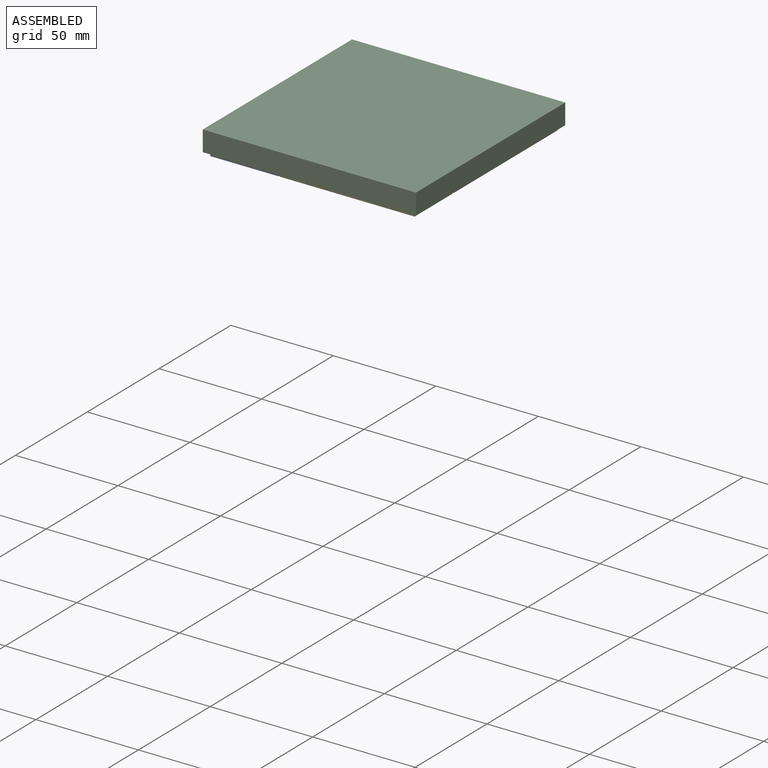
[diagram: assembled view]
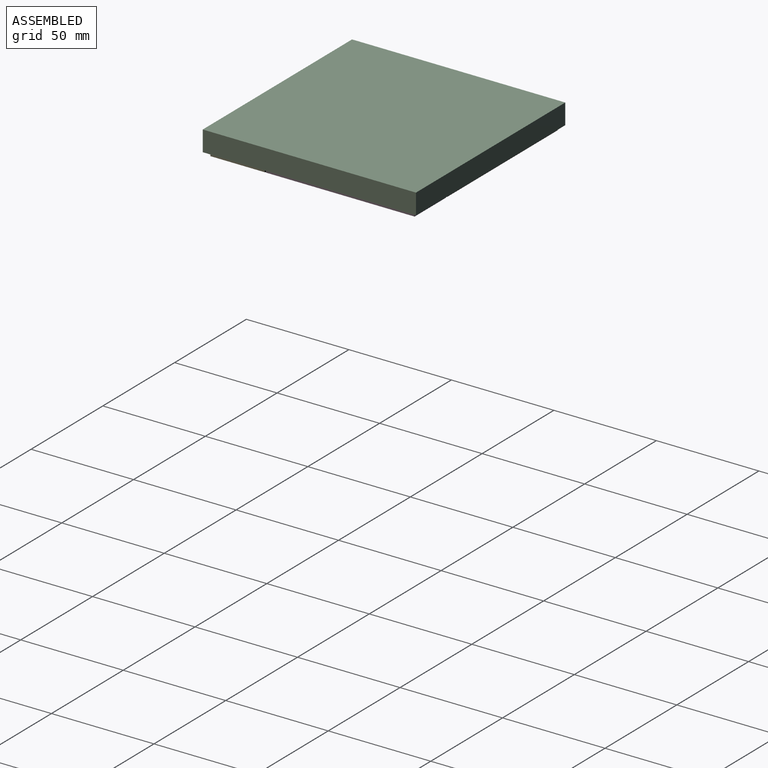
[diagram: assembled view, second angle]
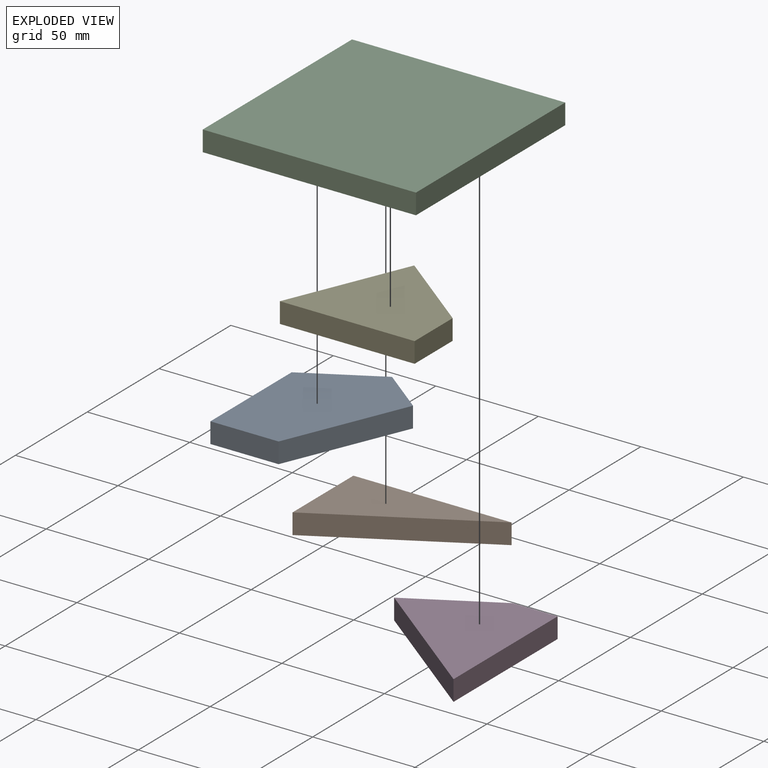
[diagram: exploded view]
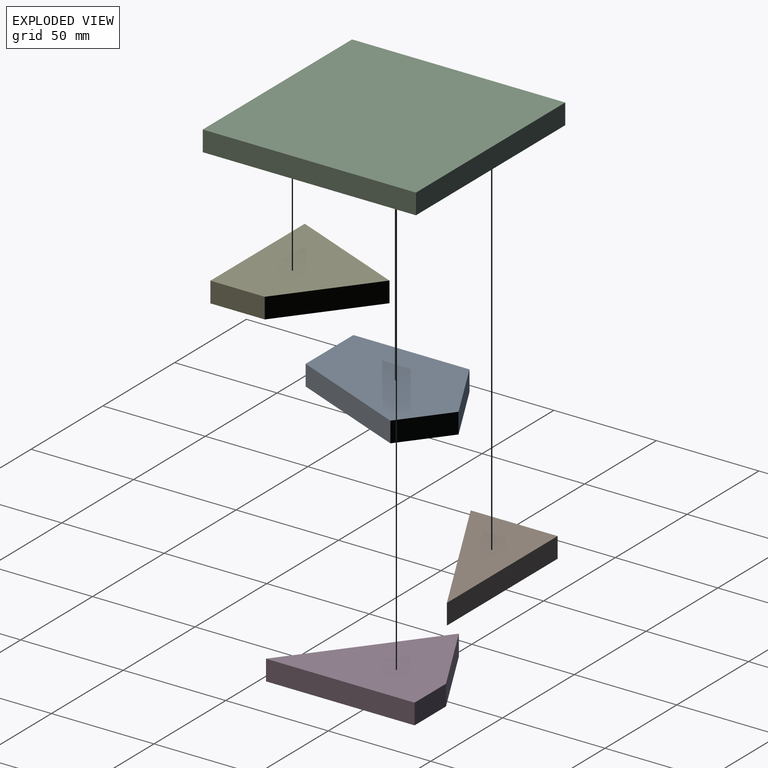
[diagram: exploded view, second angle]
ASSEMBLY  parts=5 mates=4
PART A: 7 faces, bbox 57.9x76x10 mm
  f0: plane 33.27x10mm, normal (0,-1,0), area 332.7mm2, adj f1,f4,f5,f6
  f1: plane 58.53x24.59mm, normal (0.92,-0.39,0), area 634.9mm2, adj f0,f2,f5,f6
  f2: plane 22.5x17.51mm, normal (0.61,0.79,0), area 285.1mm2, adj f1,f3,f5,f6
  f3: plane 35.36x19.42mm, normal (-0.48,0.88,0), area 403.4mm2, adj f2,f4,f5,f6
  f4: plane 56.62x10mm, normal (-1,0,0), area 566.2mm2, adj f0,f3,f5,f6
  f5: plane 76.04x57.86mm, normal (0,0,1), area 3139.4mm2, adj f0,f1,f2,f3,f4
  f6: plane 76.04x57.86mm, normal (0,0,-1), area 3139.4mm2, adj f0,f1,f2,f3,f4
PART B: 5 faces, bbox 77.2x42.4x10 mm
  f0: plane 42.38x10mm, normal (-1,0,0), area 423.8mm2, adj f1,f2,f3,f4
  f1: plane 77.15x42.38mm, normal (0.48,-0.88,0), area 880.3mm2, adj f0,f2,f3,f4
  f2: plane 77.15x10mm, normal (0,1,0), area 771.5mm2, adj f0,f1,f3,f4
  f3: plane 77.15x42.38mm, normal (0,0,1), area 1635mm2, adj f0,f1,f2
  f4: plane 77.15x42.38mm, normal (0,0,-1), area 1635mm2, adj f0,f1,f2
PART C: 11 faces, bbox 104x104x10 mm
  f0: plane 104x10mm, normal (1,0,0), area 1040mm2, adj f1,f3,f4,f5
  f1: plane 104x10mm, normal (0,1,0), area 1040mm2, adj f0,f2,f4,f5
  f2: plane 104x10mm, normal (-1,0,0), area 1040mm2, adj f1,f3,f4,f5
  f3: plane 104x10mm, normal (0,-1,0), area 1040mm2, adj f0,f2,f4,f5
  f4: plane 104x104mm, normal (0,0,1), area 10816mm2, adj f0,f1,f2,f3
  f5: plane 104x104mm, normal (0,0,-1), area 816mm2, adj f0,f1,f2,f3,f6,f7,f8,f9
  f6: plane 100x8mm, normal (-1,0,0), area 800mm2, adj f5,f7,f9,f10
  f7: plane 100x8mm, normal (0,-1,0), area 800mm2, adj f5,f6,f8,f10
  f8: plane 100x8mm, normal (1,0,0), area 800mm2, adj f5,f7,f9,f10
  f9: plane 100x8mm, normal (0,1,0), area 800mm2, adj f5,f6,f8,f10
  f10: plane 100x100mm, normal (0,0,-1), area 10000mm2, adj f6,f7,f8,f9
PART D: 6 faces, bbox 63.6x72.5x10 mm
  f0: plane 41.8x22.96mm, normal (-0.48,0.88,0), area 476.9mm2, adj f1,f3,f4,f5
  f1: plane 63.64x49.53mm, normal (-0.61,-0.79,0), area 806.5mm2, adj f0,f2,f4,f5
  f2: plane 72.49x10mm, normal (1,0,0), area 724.9mm2, adj f1,f3,f4,f5
  f3: plane 21.85x10mm, normal (0,1,0), area 218.5mm2, adj f0,f2,f4,f5
  f4: plane 72.49x63.64mm, normal (0,0,1), area 2557.6mm2, adj f0,f1,f2,f3
  f5: plane 72.49x63.64mm, normal (0,0,-1), area 2557.6mm2, adj f0,f1,f2,f3
PART E: 6 faces, bbox 65.7x58.5x10 mm
  f0: plane 41.14x32.02mm, normal (0.61,0.79,0), area 521.4mm2, adj f1,f3,f4,f5
  f1: plane 58.53x24.59mm, normal (-0.92,0.39,0), area 634.9mm2, adj f0,f2,f4,f5
  f2: plane 65.73x10mm, normal (0,-1,0), area 657.3mm2, adj f1,f3,f4,f5
  f3: plane 26.51x10mm, normal (1,0,0), area 265.1mm2, adj f0,f2,f4,f5
  f4: plane 65.73x58.53mm, normal (0,0,1), area 2469mm2, adj f0,f1,f2,f3
  f5: plane 65.73x58.53mm, normal (0,0,-1), area 2469mm2, adj f0,f1,f2,f3
PLACE A t=(179.74,-122.07,0.39)mm
PLACE B t=(179.74,-121.47,0.39)mm
PLACE C t=(166.98,-121.77,2.39)mm
PLACE D t=(180.34,-121.47,0.39)mm
PLACE E t=(180.34,-122.07,0.39)mm
MATE fastened C.f10 <-> D.f4  axis (0,0,-1) through (230.04,-71.77,10.39)mm
MATE fastened C.f10 <-> A.f5  axis (0,0,-1) through (130.04,-171.77,10.39)mm
MATE fastened C.f10 <-> B.f3  axis (0,0,-1) through (130.04,-71.77,10.39)mm
MATE fastened E.f4 <-> C.f10  axis (0,0,-1) through (229.84,-171.57,10.39)mm
